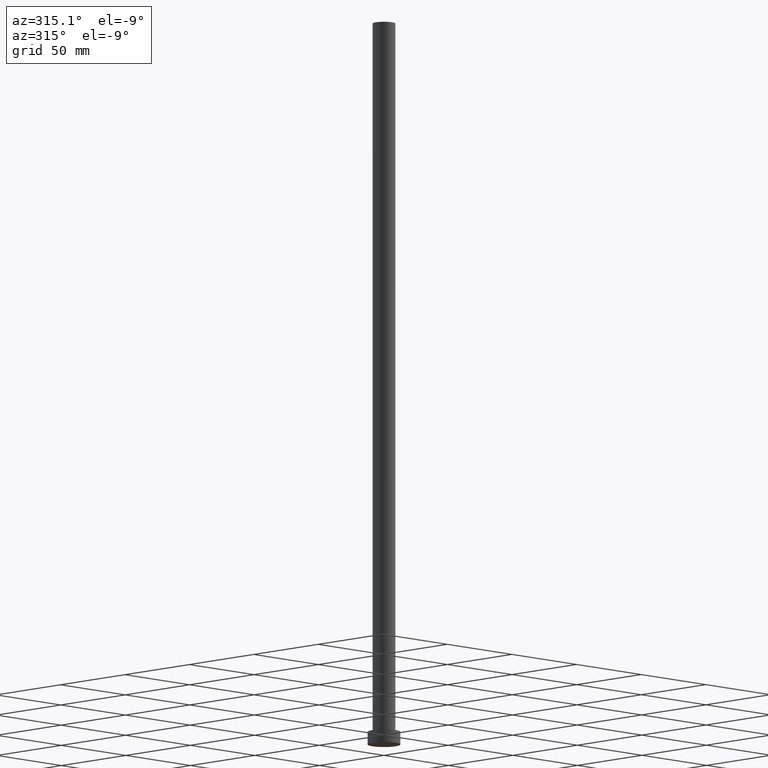
[diagram: clean part render]
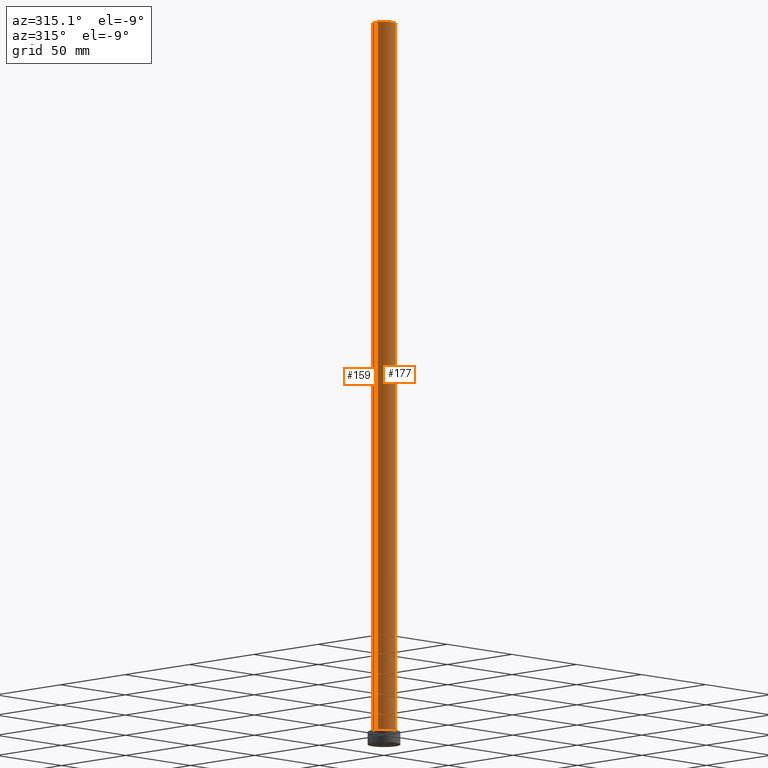
[diagram: same view with one multi-face feature highlighted, each face labeled with its STEP entity id]
A machine part, auxiliary view. The highlighted faces form ONE feature: a constant-radius fillet chain: 2 tangent blend faces with common blend radius 6.25 mm. The faces share edges in the B-rep.
Their STEP definitions:
[1] entity #159 (Cylinder):
#1 = ORIENTED_EDGE ( 'NONE', *, *, #17, .T. ) ;
#17 = EDGE_CURVE ( 'NONE', #172, #53, #49, .T. ) ;
#20 = AXIS2_PLACEMENT_3D ( 'NONE', #46, #238, #108 ) ;
#31 = DIRECTION ( 'NONE',  ( -0.000000000000000000, -0.000000000000000000, -1.000000000000000000 ) ) ;
#32 = CARTESIAN_POINT ( 'NONE',  ( -6.250000000000000000, 0.000000000000000000, 400.0000000000000000 ) ) ;
#42 = DIRECTION ( 'NONE',  ( 1.000000000000000000, 0.000000000000000000, 0.000000000000000000 ) ) ;
#46 = CARTESIAN_POINT ( 'NONE',  ( 0.000000000000000000, 0.000000000000000000, 400.0000000000000000 ) ) ;
#48 = FACE_OUTER_BOUND ( 'NONE', #216, .T. ) ;
#49 = CIRCLE ( 'NONE', #158, 6.250000000000000000 ) ;
#51 = CARTESIAN_POINT ( 'NONE',  ( 6.250000000000000000, 7.654042494670957606E-16, 400.0000000000000000 ) ) ;
#53 = VERTEX_POINT ( 'NONE', #247 ) ;
#59 = EDGE_CURVE ( 'NONE', #207, #53, #130, .T. ) ;
#74 = VERTEX_POINT ( 'NONE', #51 ) ;
#80 = CARTESIAN_POINT ( 'NONE',  ( 6.250000000000000000, 7.654042494670957606E-16, 400.0000000000000000 ) ) ;
#82 = EDGE_CURVE ( 'NONE', #74, #172, #202, .T. ) ;
#83 = VECTOR ( 'NONE', #31, 1000.000000000000000 ) ;
#89 = CYLINDRICAL_SURFACE ( 'NONE', #20, 6.250000000000000000 ) ;
#107 = ORIENTED_EDGE ( 'NONE', *, *, #59, .F. ) ;
#108 = DIRECTION ( 'NONE',  ( -1.000000000000000000, 0.000000000000000000, 0.000000000000000000 ) ) ;
#121 = DIRECTION ( 'NONE',  ( 0.000000000000000000, 0.000000000000000000, 1.000000000000000000 ) ) ;
#122 = CARTESIAN_POINT ( 'NONE',  ( 0.000000000000000000, 0.000000000000000000, 400.0000000000000000 ) ) ;
#124 = AXIS2_PLACEMENT_3D ( 'NONE', #122, #121, #42 ) ;
#130 = LINE ( 'NONE', #32, #131 ) ;
#131 = VECTOR ( 'NONE', #205, 1000.000000000000000 ) ;
#143 = DIRECTION ( 'NONE',  ( 1.000000000000000000, 0.000000000000000000, 0.000000000000000000 ) ) ;
#156 = CIRCLE ( 'NONE', #124, 6.250000000000000000 ) ;
#158 = AXIS2_PLACEMENT_3D ( 'NONE', #219, #160, #143 ) ;
#159 = ADVANCED_FACE ( 'NONE', ( #48 ), #89, .T. ) ;
#160 = DIRECTION ( 'NONE',  ( 0.000000000000000000, 0.000000000000000000, 1.000000000000000000 ) ) ;
#172 = VERTEX_POINT ( 'NONE', #196 ) ;
#196 = CARTESIAN_POINT ( 'NONE',  ( 6.250000000000000000, 7.654042494670957606E-16, 7.000000000000000000 ) ) ;
#202 = LINE ( 'NONE', #80, #83 ) ;
#205 = DIRECTION ( 'NONE',  ( -0.000000000000000000, -0.000000000000000000, -1.000000000000000000 ) ) ;
#207 = VERTEX_POINT ( 'NONE', #253 ) ;
#216 = EDGE_LOOP ( 'NONE', ( #236, #252, #1, #107 ) ) ;
#217 = EDGE_CURVE ( 'NONE', #74, #207, #156, .T. ) ;
#219 = CARTESIAN_POINT ( 'NONE',  ( 0.000000000000000000, 0.000000000000000000, 7.000000000000000000 ) ) ;
#236 = ORIENTED_EDGE ( 'NONE', *, *, #217, .F. ) ;
#238 = DIRECTION ( 'NONE',  ( -0.000000000000000000, -0.000000000000000000, -1.000000000000000000 ) ) ;
#247 = CARTESIAN_POINT ( 'NONE',  ( -6.250000000000000000, 0.000000000000000000, 7.000000000000000000 ) ) ;
#252 = ORIENTED_EDGE ( 'NONE', *, *, #82, .T. ) ;
#253 = CARTESIAN_POINT ( 'NONE',  ( -6.250000000000000000, 0.000000000000000000, 400.0000000000000000 ) ) ;
[2] entity #177 (Cylinder):
#6 = CYLINDRICAL_SURFACE ( 'NONE', #194, 6.250000000000000000 ) ;
#9 = CARTESIAN_POINT ( 'NONE',  ( 0.000000000000000000, 0.000000000000000000, 400.0000000000000000 ) ) ;
#26 = ORIENTED_EDGE ( 'NONE', *, *, #213, .F. ) ;
#31 = DIRECTION ( 'NONE',  ( -0.000000000000000000, -0.000000000000000000, -1.000000000000000000 ) ) ;
#32 = CARTESIAN_POINT ( 'NONE',  ( -6.250000000000000000, 0.000000000000000000, 400.0000000000000000 ) ) ;
#35 = DIRECTION ( 'NONE',  ( 1.000000000000000000, 0.000000000000000000, 0.000000000000000000 ) ) ;
#39 = AXIS2_PLACEMENT_3D ( 'NONE', #84, #112, #175 ) ;
#51 = CARTESIAN_POINT ( 'NONE',  ( 6.250000000000000000, 7.654042494670957606E-16, 400.0000000000000000 ) ) ;
#53 = VERTEX_POINT ( 'NONE', #247 ) ;
#59 = EDGE_CURVE ( 'NONE', #207, #53, #130, .T. ) ;
#74 = VERTEX_POINT ( 'NONE', #51 ) ;
#76 = DIRECTION ( 'NONE',  ( -1.000000000000000000, 0.000000000000000000, 0.000000000000000000 ) ) ;
#80 = CARTESIAN_POINT ( 'NONE',  ( 6.250000000000000000, 7.654042494670957606E-16, 400.0000000000000000 ) ) ;
#82 = EDGE_CURVE ( 'NONE', #74, #172, #202, .T. ) ;
#83 = VECTOR ( 'NONE', #31, 1000.000000000000000 ) ;
#84 = CARTESIAN_POINT ( 'NONE',  ( 0.000000000000000000, 0.000000000000000000, 7.000000000000000000 ) ) ;
#86 = EDGE_LOOP ( 'NONE', ( #101, #26, #233, #240 ) ) ;
#101 = ORIENTED_EDGE ( 'NONE', *, *, #82, .F. ) ;
#102 = CIRCLE ( 'NONE', #39, 6.250000000000000000 ) ;
#110 = AXIS2_PLACEMENT_3D ( 'NONE', #138, #214, #35 ) ;
#112 = DIRECTION ( 'NONE',  ( 0.000000000000000000, 0.000000000000000000, 1.000000000000000000 ) ) ;
#130 = LINE ( 'NONE', #32, #131 ) ;
#131 = VECTOR ( 'NONE', #205, 1000.000000000000000 ) ;
#132 = CIRCLE ( 'NONE', #110, 6.250000000000000000 ) ;
#138 = CARTESIAN_POINT ( 'NONE',  ( 0.000000000000000000, 0.000000000000000000, 400.0000000000000000 ) ) ;
#146 = EDGE_CURVE ( 'NONE', #53, #172, #102, .T. ) ;
#165 = DIRECTION ( 'NONE',  ( -0.000000000000000000, -0.000000000000000000, -1.000000000000000000 ) ) ;
#172 = VERTEX_POINT ( 'NONE', #196 ) ;
#175 = DIRECTION ( 'NONE',  ( 1.000000000000000000, 0.000000000000000000, 0.000000000000000000 ) ) ;
#177 = ADVANCED_FACE ( 'NONE', ( #180 ), #6, .T. ) ;
#180 = FACE_OUTER_BOUND ( 'NONE', #86, .T. ) ;
#194 = AXIS2_PLACEMENT_3D ( 'NONE', #9, #165, #76 ) ;
#196 = CARTESIAN_POINT ( 'NONE',  ( 6.250000000000000000, 7.654042494670957606E-16, 7.000000000000000000 ) ) ;
#202 = LINE ( 'NONE', #80, #83 ) ;
#205 = DIRECTION ( 'NONE',  ( -0.000000000000000000, -0.000000000000000000, -1.000000000000000000 ) ) ;
#207 = VERTEX_POINT ( 'NONE', #253 ) ;
#213 = EDGE_CURVE ( 'NONE', #207, #74, #132, .T. ) ;
#214 = DIRECTION ( 'NONE',  ( 0.000000000000000000, 0.000000000000000000, 1.000000000000000000 ) ) ;
#233 = ORIENTED_EDGE ( 'NONE', *, *, #59, .T. ) ;
#240 = ORIENTED_EDGE ( 'NONE', *, *, #146, .T. ) ;
#247 = CARTESIAN_POINT ( 'NONE',  ( -6.250000000000000000, 0.000000000000000000, 7.000000000000000000 ) ) ;
#253 = CARTESIAN_POINT ( 'NONE',  ( -6.250000000000000000, 0.000000000000000000, 400.0000000000000000 ) ) ;